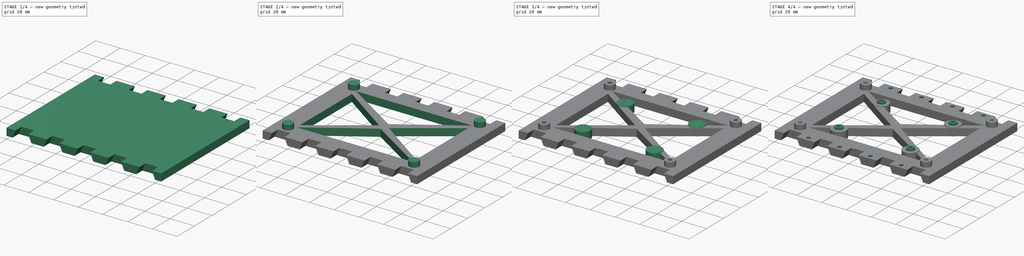
[diagram: build sequence overview — one tinted view per stage of 4, left to right]
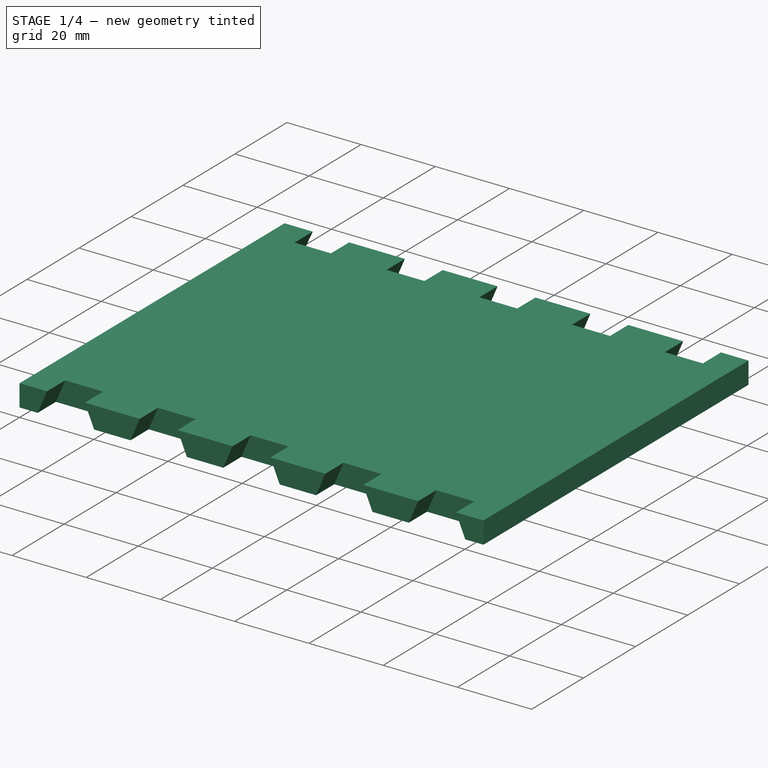
[diagram: stage 1 of 4 — iso view after this stage's code; geometry added in this stage tinted green]
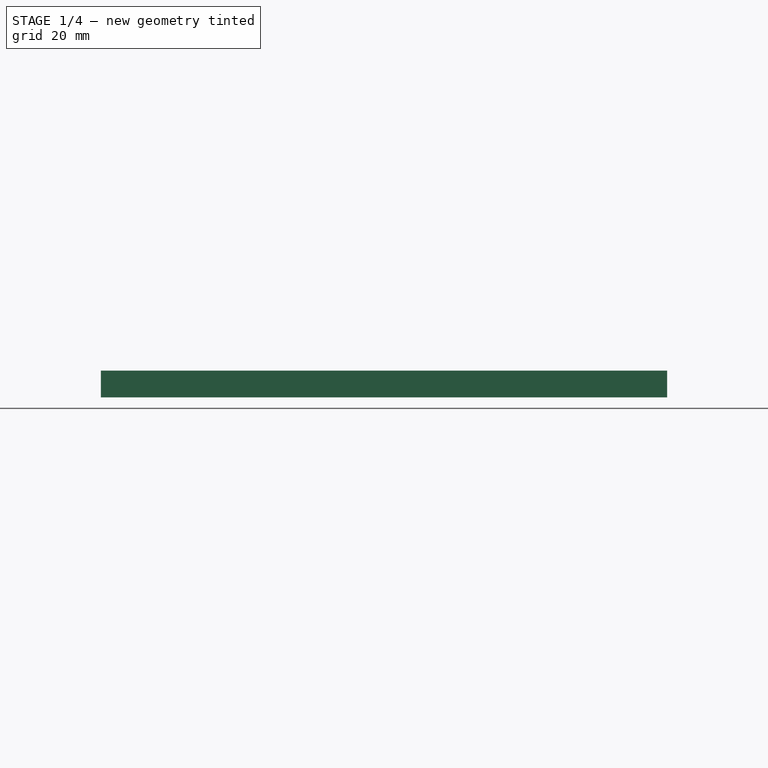
[diagram: stage 1 of 4 — front view after this stage's code; geometry added in this stage tinted green]
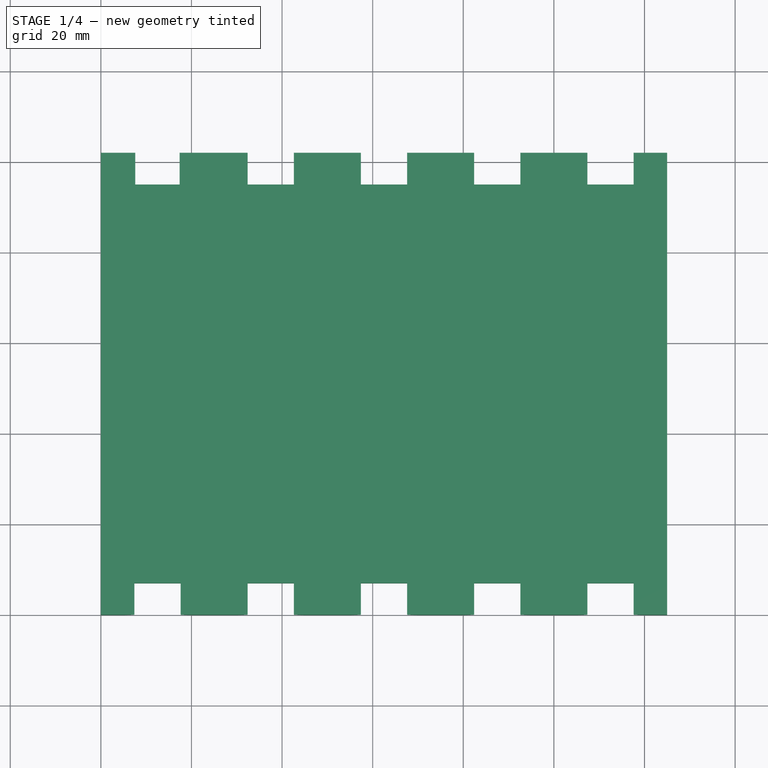
[diagram: stage 1 of 4 — top view after this stage's code; geometry added in this stage tinted green]
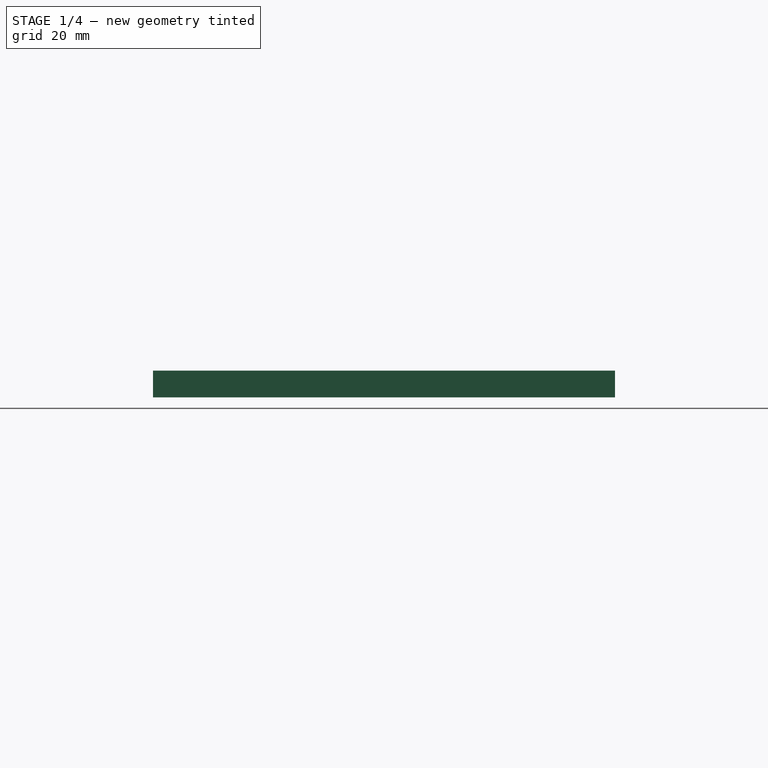
[diagram: stage 1 of 4 — right view after this stage's code; geometry added in this stage tinted green]
FCSTD DOCUMENT  (FreeCAD 0.17R13541 (Git))
Label: mks_gen_l_mount
License: All rights reserved
LicenseURL: http://en.wikipedia.org/wiki/All_rights_reserved
objects: Sketcher::SketchObject×11, PartDesign::Pocket×7, PartDesign::Pad×4, App::Part×1, PartDesign::Body×1
note: 34 computed .brp shape members not serialized (recipe doc carries the construction recipe); baked Part::Feature solids carry a one-line shape summary decoded from their .brp

FEATURE [App::Part] Part
  License = CC BY 3.0
  LicenseURL = http://creativecommons.org/licenses/by/3.0/
  Origin = -> Origin
FEATURE [Sketcher::SketchObject] Sketch
  MapMode = 5
  Support = -> [XY_Plane001]
  sketch-geometry (4):
    g0: LineSegment StartX=0 StartY=102 StartZ=0 EndX=125 EndY=102 EndZ=0
    g1: LineSegment StartX=125 StartY=102 StartZ=0 EndX=125 EndY=0 EndZ=0
    g2: LineSegment StartX=125 StartY=0 StartZ=0 EndX=0 EndY=0 EndZ=0
    g3: LineSegment StartX=0 StartY=0 StartZ=0 EndX=0 EndY=102 EndZ=0
  constraints (11):
    c: Coincident(g0,g1)
    c: Coincident(g1,g2)
    c: Coincident(g2,g3)
    c: Coincident(g3,g0)
    c: Horizontal(g0)
    c: Horizontal(g2)
    c: Vertical(g1)
    c: Vertical(g3)
    c: Coincident(g2,g-1)
    c: DistanceX(g2,g2) = 125
    c: DistanceY(g3,g3) = 102
FEATURE [PartDesign::Pad] Pad
  Length = 5.9
  Length2 = 100
  Profile = -> Sketch
  Type = 0
FEATURE [Sketcher::SketchObject] Sketch001
  MapMode = 5
  Placement = pos=(0,0,0) rot=(1,0,0;1.5708rad)
  Support = -> [Pad]
  sketch-geometry (20):
    g0: LineSegment StartX=7.4 StartY=5.9 StartZ=0 EndX=17.6 EndY=5.9 EndZ=0
    g1: LineSegment StartX=17.6 StartY=5.9 StartZ=0 EndX=20.1 EndY=0 EndZ=0
    g2: LineSegment StartX=4.9 StartY=0 StartZ=0 EndX=20.1 EndY=0 EndZ=0
    g3: LineSegment StartX=7.4 StartY=5.9 StartZ=0 EndX=4.9 EndY=0 EndZ=0
    g4: LineSegment StartX=32.4 StartY=5.9 StartZ=0 EndX=42.6 EndY=5.9 EndZ=0
    g5: LineSegment StartX=42.6 StartY=5.9 StartZ=0 EndX=45.1 EndY=0 EndZ=0
    g6: LineSegment StartX=29.9 StartY=0 StartZ=0 EndX=45.1 EndY=0 EndZ=0
    g7: LineSegment StartX=32.4 StartY=5.9 StartZ=0 EndX=29.9 EndY=0 EndZ=0
    g8: LineSegment StartX=57.4 StartY=5.9 StartZ=0 EndX=67.6 EndY=5.9 EndZ=0
    g9: LineSegment StartX=67.6 StartY=5.9 StartZ=0 EndX=70.1 EndY=0 EndZ=0
    g10: LineSegment StartX=54.9 StartY=0 StartZ=0 EndX=70.1 EndY=0 EndZ=0
    g11: LineSegment StartX=57.4 StartY=5.9 StartZ=0 EndX=54.9 EndY=0 EndZ=0
    g12: LineSegment StartX=82.4 StartY=5.9 StartZ=0 EndX=92.6 EndY=5.9 EndZ=0
    g13: LineSegment StartX=92.6 StartY=5.9 StartZ=0 EndX=95.1 EndY=0 EndZ=0
    g14: LineSegment StartX=79.9 StartY=0 StartZ=0 EndX=95.1 EndY=0 EndZ=0
    g15: LineSegment StartX=82.4 StartY=5.9 StartZ=0 EndX=79.9 EndY=0 EndZ=0
    g16: LineSegment StartX=107.4 StartY=5.9 StartZ=0 EndX=117.6 EndY=5.9 EndZ=0
    g17: LineSegment StartX=117.6 StartY=5.9 StartZ=0 EndX=120.1 EndY=0 EndZ=0
    g18: LineSegment StartX=104.9 StartY=0 StartZ=0 EndX=120.1 EndY=0 EndZ=0
    g19: LineSegment StartX=107.4 StartY=5.9 StartZ=0 EndX=104.9 EndY=0 EndZ=0
  constraints (60):
    c: Horizontal(g0)
    c: Coincident(g0,g3)
    c: Coincident(g2,g3)
    c: Horizontal(g2)
    c: Coincident(g2,g1)
    c: Coincident(g0,g1)
    c: DistanceX(g0,g0) = 10.2
    c: DistanceX(g2,g2) = 15.2
    c: Equal(g3,g1)
    c: DistanceY(g2,g0) = 5.9
    c: Horizontal(g4)
    c: Coincident(g4,g7)
    c: Coincident(g6,g7)
    c: Horizontal(g6)
    c: Coincident(g6,g5)
    c: Coincident(g4,g5)
    c: Equal(g0,g4) = 10.2
    c: Equal(g2,g6) = 15.2
    c: Equal(g7,g5)
    c: DistanceY(g6,g4) = 5.9
    c: DistanceX(g1,g6) = 9.8
    c: PointOnObject(g-1,g2)
    c: PointOnObject(g-1,g6)
    c: Horizontal(g8)
    c: Coincident(g8,g11)
    c: Coincident(g10,g11)
    c: Horizontal(g10)
    c: Coincident(g10,g9)
    c: Coincident(g8,g9)
    c: Equal(g0,g8) = 10.2
    c: Equal(g2,g10) = 15.2
    c: Equal(g11,g9)
    c: DistanceY(g10,g8) = 5.9
    c: Horizontal(g12)
    c: Coincident(g12,g15)
    c: Coincident(g14,g15)
    c: Horizontal(g14)
    c: Coincident(g14,g13)
    c: Coincident(g12,g13)
    c: Equal(g8,g12) = 10.2
    c: Equal(g10,g14) = 15.2
    c: Equal(g15,g13)
    c: DistanceY(g14,g12) = 5.9
    c: DistanceX(g9,g14) = 9.8
    c: DistanceX(g5,g10) = 9.8
    c: PointOnObject(g-1,g10)
    c: PointOnObject(g-1,g14)
    c: Horizontal(g16)
    c: Coincident(g16,g19)
    c: Coincident(g18,g19)
    c: Horizontal(g18)
    c: Coincident(g18,g17)
    c: Coincident(g16,g17)
    c: Equal(g19,g17)
    c: DistanceY(g18,g16) = 5.9
    c: DistanceX(g13,g18) = 9.8
    c: PointOnObject(g-1,g18)
    c: DistanceX(g18,g17) = 15.2
    c: DistanceX(g16,g16) = 10.2
    c: DistanceX(g-1,g2) = 4.9
FEATURE [PartDesign::Pocket] Pocket
  BaseFeature = -> Pad
  Length = 7
  Length2 = 100
  Profile = -> Sketch001
  Type = 0
FEATURE [Sketcher::SketchObject] Sketch003
  MapMode = 5
  Placement = pos=(0,102,0) rot=(0,0.707107,0.707107;3.14159rad)
  Support = -> [Pocket]
  sketch-geometry (20):
    g0: LineSegment StartX=-117.6 StartY=5.9 StartZ=0 EndX=-107.4 EndY=5.9 EndZ=0
    g1: LineSegment StartX=-107.4 StartY=5.9 StartZ=0 EndX=-104.9 EndY=0 EndZ=0
    g2: LineSegment StartX=-120.1 StartY=0 StartZ=0 EndX=-104.9 EndY=0 EndZ=0
    g3: LineSegment StartX=-117.6 StartY=5.9 StartZ=0 EndX=-120.1 EndY=0 EndZ=0
    g4: LineSegment StartX=-92.6 StartY=5.9 StartZ=0 EndX=-82.4 EndY=5.9 EndZ=0
    g5: LineSegment StartX=-82.4 StartY=5.9 StartZ=0 EndX=-79.9 EndY=0 EndZ=0
    g6: LineSegment StartX=-95.1 StartY=0 StartZ=0 EndX=-79.9 EndY=0 EndZ=0
    g7: LineSegment StartX=-92.6 StartY=5.9 StartZ=0 EndX=-95.1 EndY=0 EndZ=0
    g8: LineSegment StartX=-67.6 StartY=5.9 StartZ=0 EndX=-57.4 EndY=5.9 EndZ=0
    g9: LineSegment StartX=-57.4 StartY=5.9 StartZ=0 EndX=-54.9 EndY=0 EndZ=0
    g10: LineSegment StartX=-70.1 StartY=0 StartZ=0 EndX=-54.9 EndY=0 EndZ=0
    g11: LineSegment StartX=-67.6 StartY=5.9 StartZ=0 EndX=-70.1 EndY=0 EndZ=0
    g12: LineSegment StartX=-42.6 StartY=5.9 StartZ=0 EndX=-32.4 EndY=5.9 EndZ=0
    g13: LineSegment StartX=-32.4 StartY=5.9 StartZ=0 EndX=-29.9 EndY=0 EndZ=0
    g14: LineSegment StartX=-45.1 StartY=0 StartZ=0 EndX=-29.9 EndY=0 EndZ=0
    g15: LineSegment StartX=-42.6 StartY=5.9 StartZ=0 EndX=-45.1 EndY=0 EndZ=0
    g16: LineSegment StartX=-17.4 StartY=5.9 StartZ=0 EndX=-7.6 EndY=5.9 EndZ=0
    g17: LineSegment StartX=-7.6 StartY=5.9 StartZ=0 EndX=-4.9 EndY=0 EndZ=0
    g18: LineSegment StartX=-20.1 StartY=0 StartZ=0 EndX=-4.9 EndY=0 EndZ=0
    g19: LineSegment StartX=-17.4 StartY=5.9 StartZ=0 EndX=-20.1 EndY=0 EndZ=0
  constraints (60):
    c: Horizontal(g0)
    c: Horizontal(g2)
    c: Coincident(g0,g3)
    c: Coincident(g0,g1)
    c: Coincident(g1,g2)
    c: Coincident(g2,g3)
    c: DistanceX(g2,g2) = 15.2
    c: DistanceX(g0,g0) = 10.2
    c: Equal(g3,g1)
    c: PointOnObject(g-1,g2)
    c: DistanceY(g2,g0) = 5.9
    c: Horizontal(g4)
    c: Horizontal(g6)
    c: Coincident(g4,g7)
    c: Coincident(g4,g5)
    c: Coincident(g5,g6)
    c: Coincident(g6,g7)
    c: Equal(g2,g6) = 15.2
    c: Equal(g0,g4) = 10.2
    c: Equal(g7,g5)
    c: DistanceY(g6,g4) = 5.9
    c: DistanceX(g1,g6) = 9.8
    c: PointOnObject(g-1,g6)
    c: Horizontal(g8)
    c: Horizontal(g10)
    c: Coincident(g8,g11)
    c: Coincident(g8,g9)
    c: Coincident(g9,g10)
    c: Coincident(g10,g11)
    c: Equal(g2,g10) = 15.2
    c: Equal(g0,g8) = 10.2
    c: Equal(g11,g9)
    c: DistanceY(g10,g8) = 5.9
    c: Horizontal(g12)
    c: Horizontal(g14)
    c: Coincident(g12,g15)
    c: Coincident(g12,g13)
    c: Coincident(g13,g14)
    c: Coincident(g14,g15)
    c: Equal(g10,g14) = 15.2
    c: Equal(g8,g12) = 10.2
    c: Equal(g15,g13)
    c: DistanceY(g14,g12) = 5.9
    c: DistanceX(g9,g14) = 9.8
    c: DistanceX(g5,g10) = 9.8
    c: PointOnObject(g-1,g14)
    c: PointOnObject(g-1,g10)
    c: Horizontal(g16)
    c: Horizontal(g18)
    c: Coincident(g16,g19)
    c: Coincident(g16,g17)
    c: Coincident(g17,g18)
    c: Coincident(g18,g19)
    c: Equal(g19,g17)
    c: DistanceY(g18,g16) = 5.9
    c: PointOnObject(g-1,g18)
    c: DistanceX(g13,g18) = 9.8
    c: DistanceX(g18,g18) = 15.2
    c: DistanceX(g16,g16) = 9.8
    c: DistanceX(g17,g-1) = 4.9
FEATURE [PartDesign::Pocket] Pocket001
  BaseFeature = -> Pocket
  Length = 7
  Length2 = 100
  Profile = -> Sketch003
  Type = 0
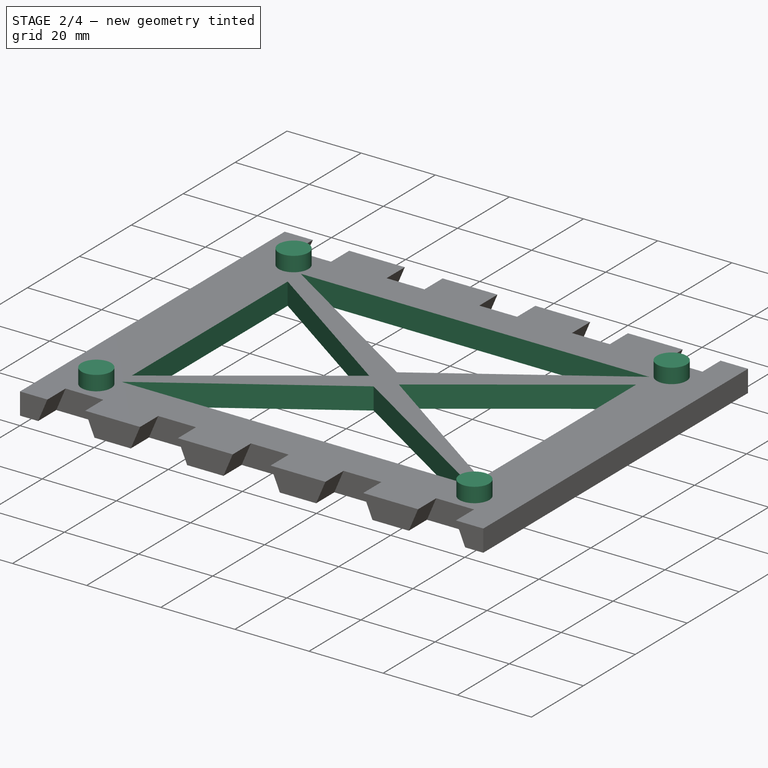
[diagram: stage 2 of 4 — iso view after this stage's code; geometry added in this stage tinted green]
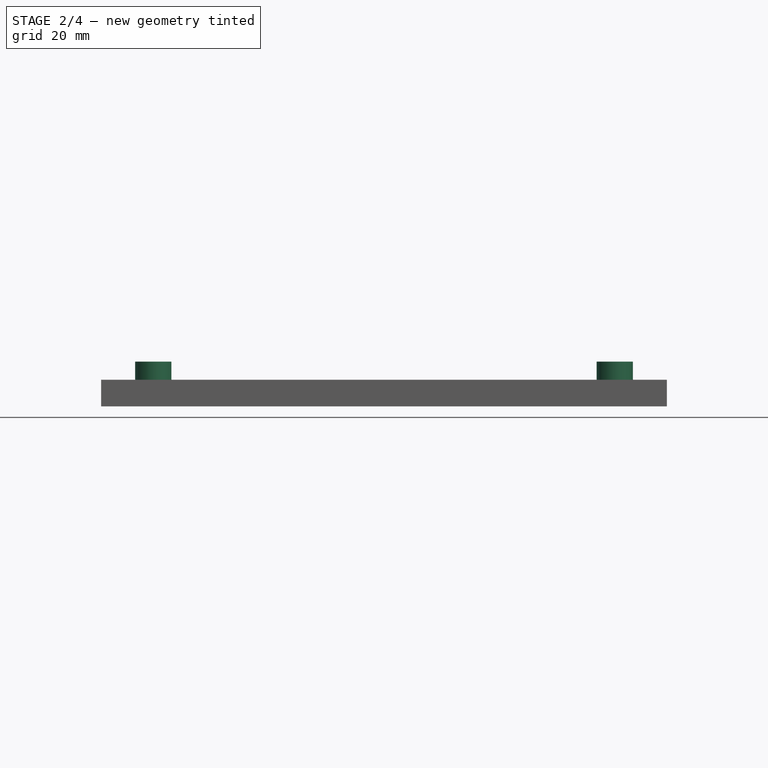
[diagram: stage 2 of 4 — front view after this stage's code; geometry added in this stage tinted green]
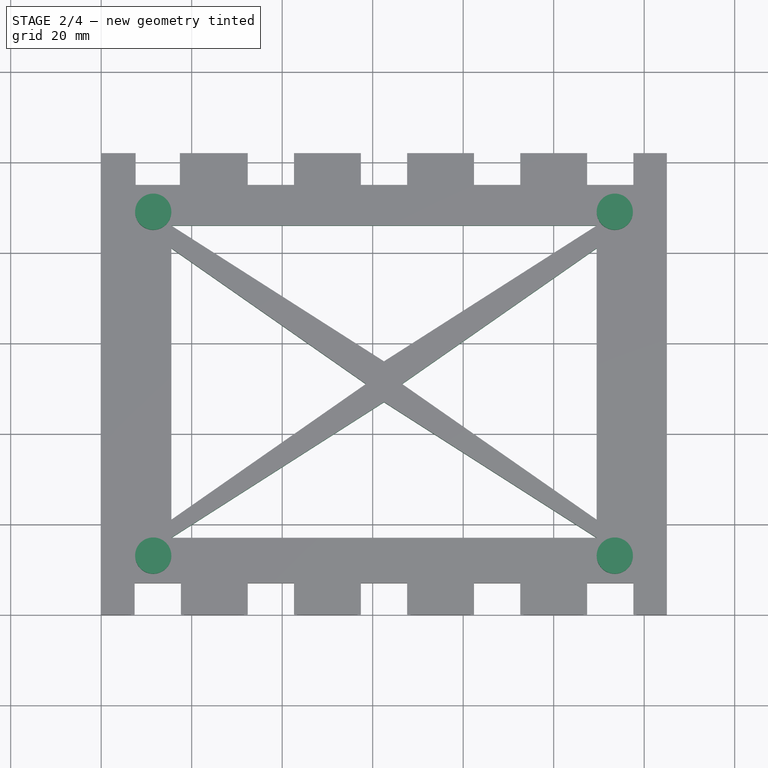
[diagram: stage 2 of 4 — top view after this stage's code; geometry added in this stage tinted green]
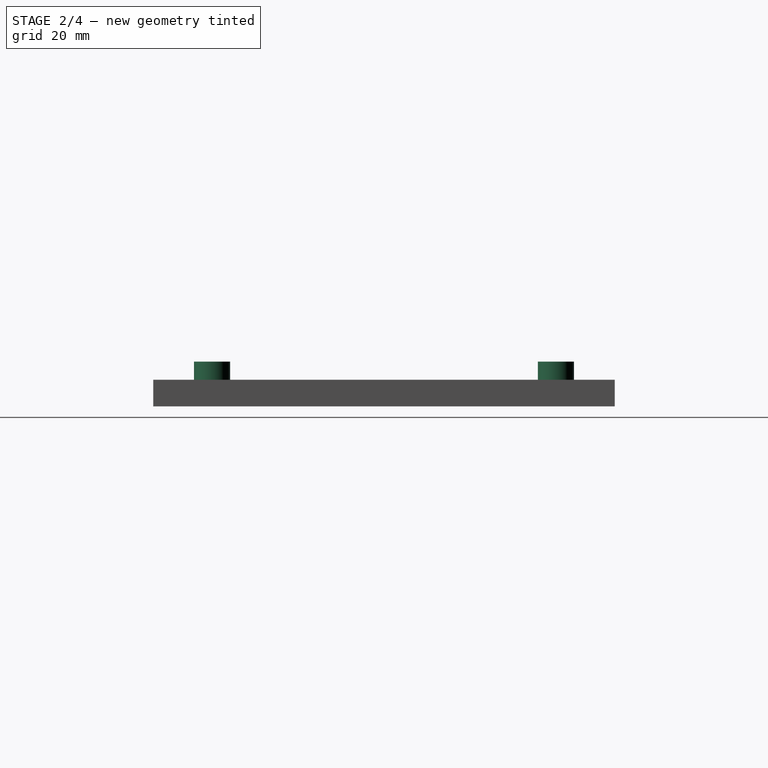
[diagram: stage 2 of 4 — right view after this stage's code; geometry added in this stage tinted green]
FEATURE [Sketcher::SketchObject] Sketch006
  MapMode = 5
  Placement = pos=(0,0,0) rot=(1,0,0;3.14159rad)
  sketch-geometry (6):
    g0: LineSegment StartX=15.5 StartY=-17 StartZ=0 EndX=109.5 EndY=-17 EndZ=0
    g1: LineSegment StartX=109.5 StartY=-17 StartZ=0 EndX=62.5 EndY=-47 EndZ=0
    g2: LineSegment StartX=62.5 StartY=-47 StartZ=0 EndX=15.5 EndY=-17 EndZ=0
    g3: LineSegment StartX=15.5 StartY=-86 StartZ=0 EndX=109.5 EndY=-86 EndZ=0
    g4: LineSegment StartX=109.5 StartY=-86 StartZ=0 EndX=62.5 EndY=-56 EndZ=0
    g5: LineSegment StartX=62.5 StartY=-56 StartZ=0 EndX=15.5 EndY=-86 EndZ=0
  constraints (18):
    c: Coincident(g0,g1)
    c: Coincident(g1,g2)
    c: Coincident(g2,g0)
    c: Equal(g2,g1)
    c: Horizontal(g0)
    c: DistanceX(g0,g0) = 94
    c: DistanceX(g-1,g0) = 15.5
    c: DistanceY(g0,g-1) = 17
    c: DistanceY(g1,g-1) = 47
    c: Coincident(g3,g4)
    c: Coincident(g4,g5)
    c: Coincident(g5,g3)
    c: Equal(g5,g4)
    c: Horizontal(g3)
    c: Equal(g0,g3) = 94
    c: DistanceY(g3,g-1) = 86
    c: DistanceX(g-1,g3) = 15.5
    c: DistanceY(g4,g-1) = 56
FEATURE [PartDesign::Pocket] Pocket003
  BaseFeature = -> Pocket001
  Length = 6
  Length2 = 100
  Profile = -> Sketch006
  Type = 0
FEATURE [Sketcher::SketchObject] Sketch007
  MapMode = 5
  Placement = pos=(0,0,5.9) rot=(0,0,1;0rad)
  Support = -> [Pocket003]
  sketch-geometry (6):
    g0: LineSegment StartX=15.5 StartY=81 StartZ=0 EndX=15.5 EndY=21 EndZ=0
    g1: LineSegment StartX=15.5 StartY=21 StartZ=0 EndX=58.5 EndY=51 EndZ=0
    g2: LineSegment StartX=15.5 StartY=81 StartZ=0 EndX=58.5 EndY=51 EndZ=0
    g3: LineSegment StartX=109.5 StartY=81 StartZ=0 EndX=109.5 EndY=21 EndZ=0
    g4: LineSegment StartX=66.5 StartY=51 StartZ=0 EndX=109.5 EndY=81 EndZ=0
    g5: LineSegment StartX=66.5 StartY=51 StartZ=0 EndX=109.5 EndY=21 EndZ=0
  constraints (18):
    c: Vertical(g0)
    c: Vertical(g3)
    c: Coincident(g0,g2)
    c: Coincident(g0,g1)
    c: Coincident(g1,g2)
    c: Coincident(g3,g4)
    c: Coincident(g4,g5)
    c: Coincident(g3,g5)
    c: Equal(g4,g5)
    c: Equal(g2,g1)
    c: DistanceY(g3,g3) = 60
    c: DistanceY(g0,g0) = 60
    c: DistanceX(g-1,g4) = 66.5
    c: DistanceX(g-1,g1) = 58.5
    c: DistanceX(g-1,g0) = 15.5
    c: DistanceY(g-1,g0) = 21
    c: DistanceX(g-1,g3) = 109.5
    c: DistanceY(g-1,g3) = 21
FEATURE [PartDesign::Pocket] Pocket004
  BaseFeature = -> Pocket003
  Length = 6
  Length2 = 100
  Profile = -> Sketch007
  Type = 0
FEATURE [Sketcher::SketchObject] Sketch008
  MapMode = 5
  Placement = pos=(0,0,5.9) rot=(0,0,1;0rad)
  Support = -> [Pocket004]
  sketch-geometry (4):
    g0: Circle CenterX=11.5 CenterY=89 CenterZ=0 NormalX=0 NormalY=0 NormalZ=1 AngleXU=0 Radius=4
    g1: Circle CenterX=113.5 CenterY=89 CenterZ=0 NormalX=0 NormalY=0 NormalZ=1 AngleXU=0 Radius=4
    g2: Circle CenterX=11.5 CenterY=13 CenterZ=0 NormalX=0 NormalY=0 NormalZ=1 AngleXU=0 Radius=4
    g3: Circle CenterX=113.5 CenterY=13 CenterZ=0 NormalX=0 NormalY=0 NormalZ=1 AngleXU=0 Radius=4
  constraints (12):
    c: Radius(g0) = 4
    c: Equal(g0,g1)
    c: Equal(g0,g3)
    c: Equal(g0,g2)
    c: Horizontal(g2,g3)
    c: Vertical(g0,g2)
    c: Horizontal(g0,g1)
    c: Vertical(g1,g3)
    c: DistanceY(g2,g0) = 76
    c: DistanceX(g0,g1) = 102
    c: DistanceX(g-1,g2) = 11.5
    c: DistanceY(g-1,g2) = 13
FEATURE [PartDesign::Pad] Pad002
  BaseFeature = -> Pocket004
  Length = 4
  Length2 = 100
  Profile = -> Sketch008
  Type = 0
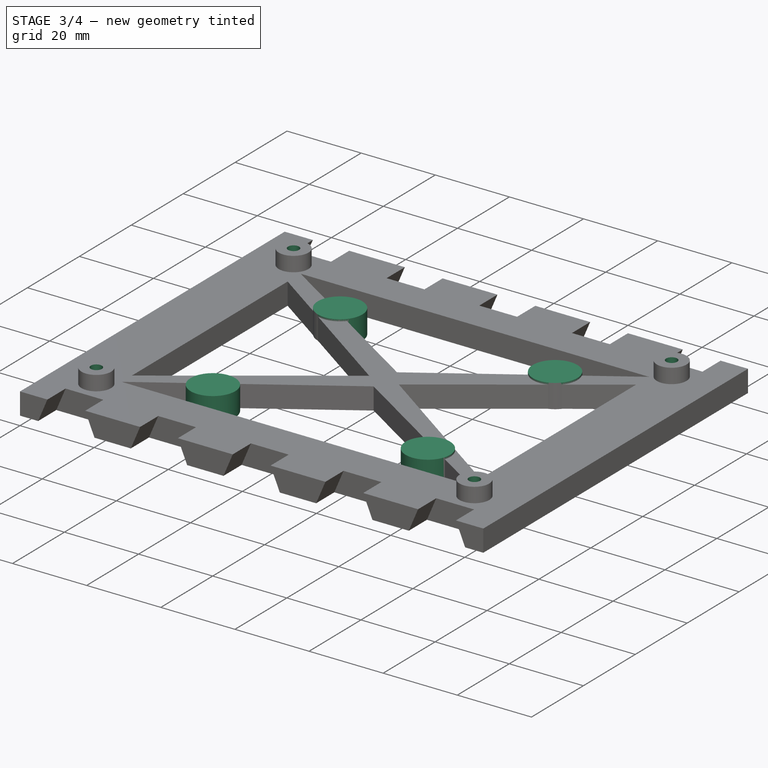
[diagram: stage 3 of 4 — iso view after this stage's code; geometry added in this stage tinted green]
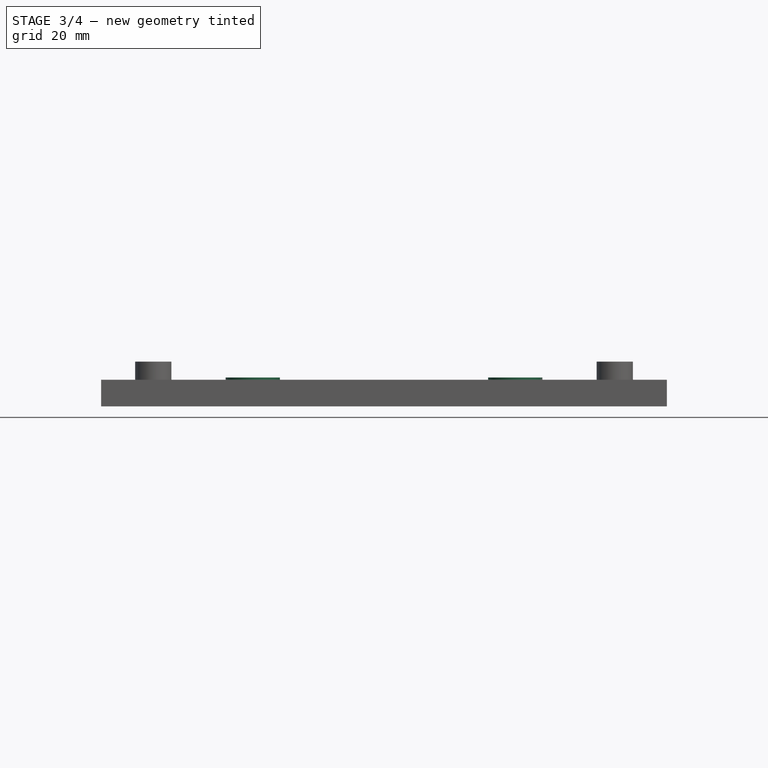
[diagram: stage 3 of 4 — front view after this stage's code; geometry added in this stage tinted green]
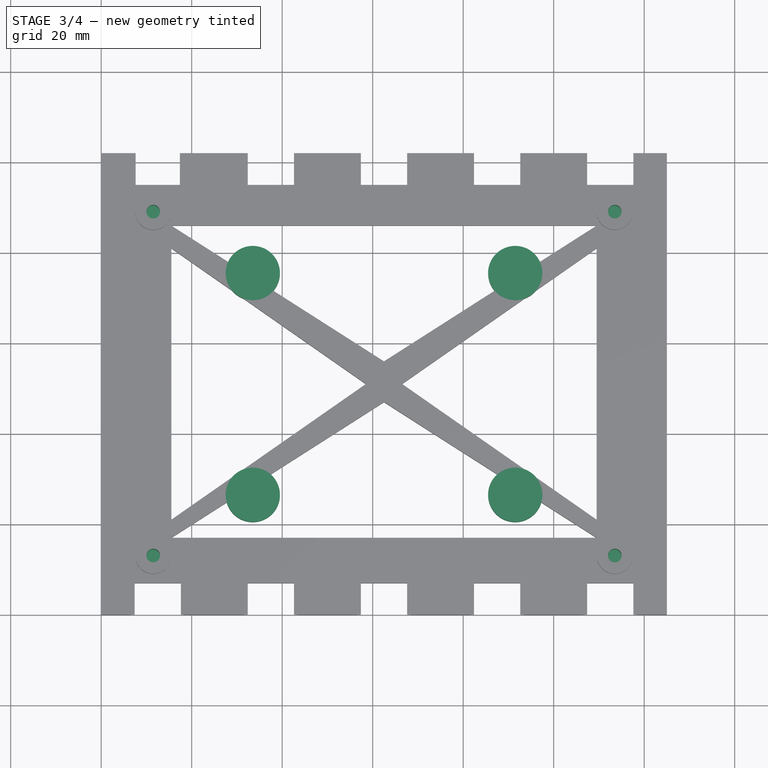
[diagram: stage 3 of 4 — top view after this stage's code; geometry added in this stage tinted green]
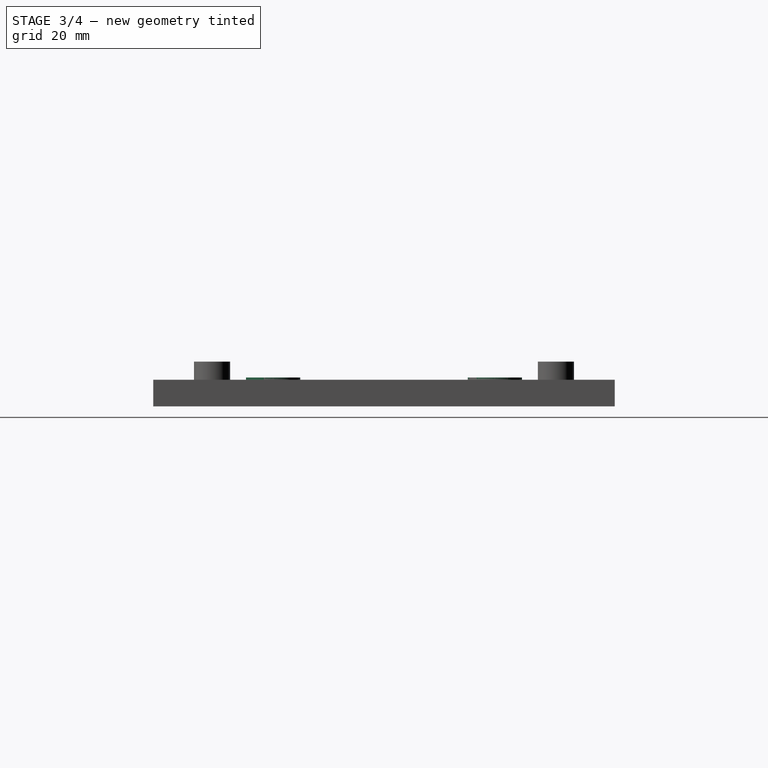
[diagram: stage 3 of 4 — right view after this stage's code; geometry added in this stage tinted green]
FEATURE [Sketcher::SketchObject] Sketch009
  MapMode = 5
  Placement = pos=(0,0,9.9) rot=(0,0,1;0rad)
  Support = -> [Pad002]
  sketch-geometry (4):
    g0: Circle CenterX=11.5 CenterY=13 CenterZ=0 NormalX=0 NormalY=0 NormalZ=1 AngleXU=0 Radius=1.5
    g1: Circle CenterX=11.5 CenterY=89 CenterZ=0 NormalX=0 NormalY=0 NormalZ=1 AngleXU=0 Radius=1.5
    g2: Circle CenterX=113.5 CenterY=89 CenterZ=0 NormalX=0 NormalY=0 NormalZ=1 AngleXU=0 Radius=1.5
    g3: Circle CenterX=113.5 CenterY=13 CenterZ=0 NormalX=0 NormalY=0 NormalZ=1 AngleXU=0 Radius=1.5
  constraints (12):
    c: Radius(g1) = 1.5
    c: Equal(g1,g2)
    c: Equal(g1,g3)
    c: Equal(g1,g0)
    c: Vertical(g1,g0)
    c: Horizontal(g0,g3)
    c: Vertical(g3,g2)
    c: Horizontal(g1,g2)
    c: DistanceX(g1,g2) = 102
    c: DistanceY(g0,g1) = 76
    c: DistanceX(g-1,g0) = 11.5
    c: DistanceY(g-1,g0) = 13
FEATURE [PartDesign::Pocket] Pocket005
  BaseFeature = -> Pad002
  Length = 9
  Length2 = 100
  Profile = -> Sketch009
  Type = 0
FEATURE [Sketcher::SketchObject] Sketch010
  MapMode = 5
  Placement = pos=(0,0,5.9) rot=(0,0,1;0rad)
  Support = -> [Pocket005]
  sketch-geometry (4):
    g0: Circle CenterX=33.5 CenterY=75.5 CenterZ=0 NormalX=0 NormalY=0 NormalZ=1 AngleXU=0 Radius=6
    g1: Circle CenterX=91.5 CenterY=75.5 CenterZ=0 NormalX=0 NormalY=0 NormalZ=1 AngleXU=0 Radius=6
    g2: Circle CenterX=33.5 CenterY=26.5 CenterZ=0 NormalX=0 NormalY=0 NormalZ=1 AngleXU=0 Radius=6
    g3: Circle CenterX=91.5 CenterY=26.5 CenterZ=0 NormalX=0 NormalY=0 NormalZ=1 AngleXU=0 Radius=6
  constraints (12):
    c: Radius(g0) = 6
    c: Equal(g0,g1)
    c: Equal(g0,g3)
    c: Equal(g0,g2)
    c: Horizontal(g0,g1)
    c: Vertical(g0,g2)
    c: Vertical(g1,g3)
    c: Horizontal(g2,g3)
    c: DistanceX(g0,g1) = 58
    c: DistanceY(g2,g0) = 49
    c: DistanceY(g-1,g2) = 26.5
    c: DistanceX(g-1,g2) = 33.5
FEATURE [PartDesign::Pad] Pad003
  BaseFeature = -> Pocket005
  Length = 0.5
  Length2 = 5.9
  Offset = 14
  Profile = -> Sketch010
  Type = 4
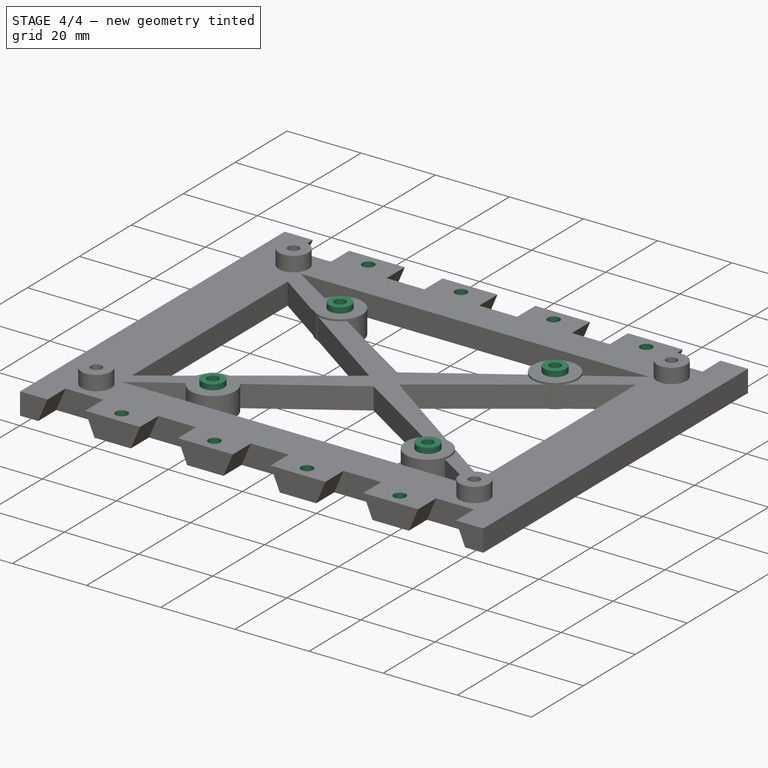
[diagram: stage 4 of 4 — iso view after this stage's code; geometry added in this stage tinted green]
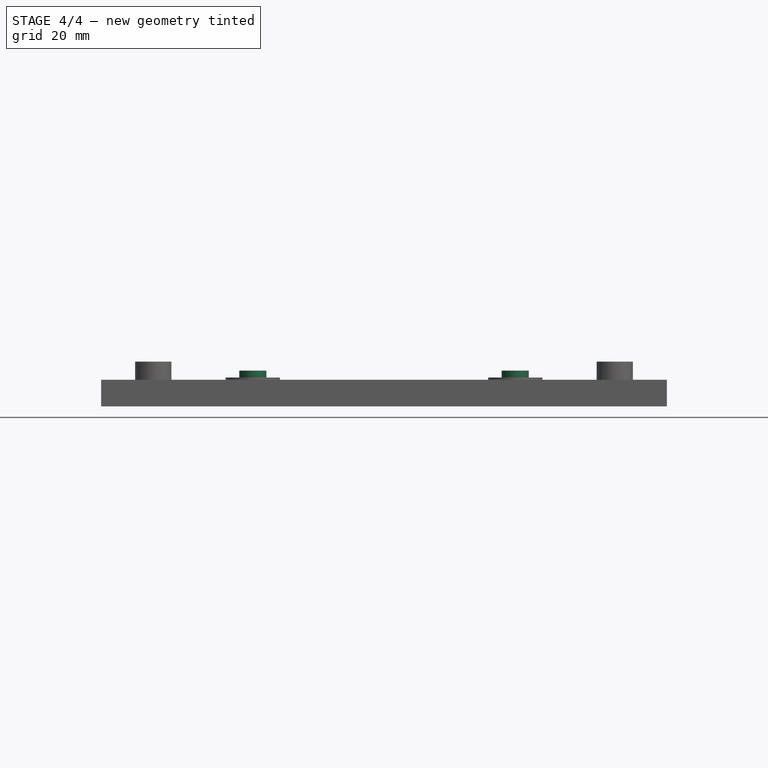
[diagram: stage 4 of 4 — front view after this stage's code; geometry added in this stage tinted green]
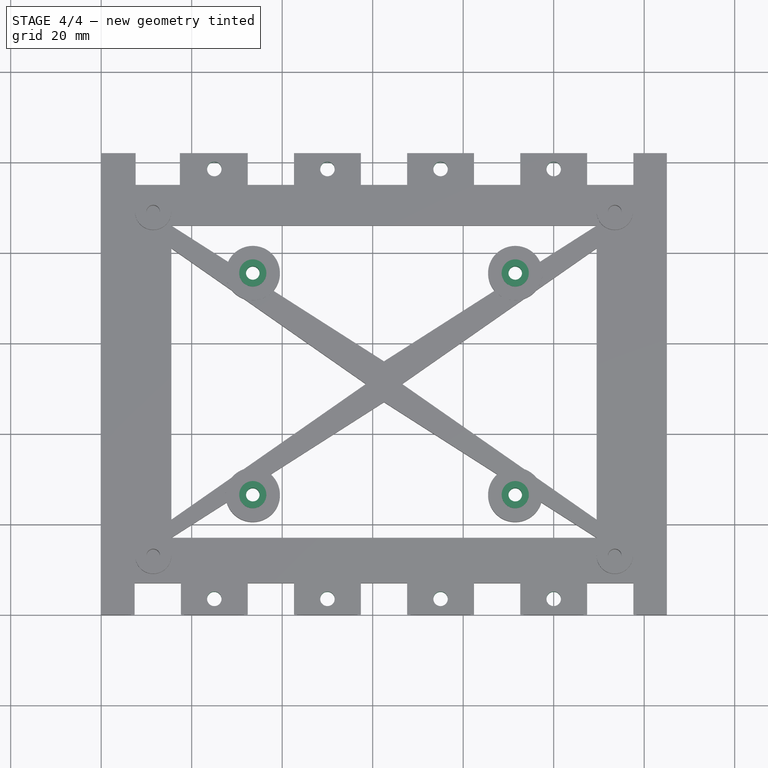
[diagram: stage 4 of 4 — top view after this stage's code; geometry added in this stage tinted green]
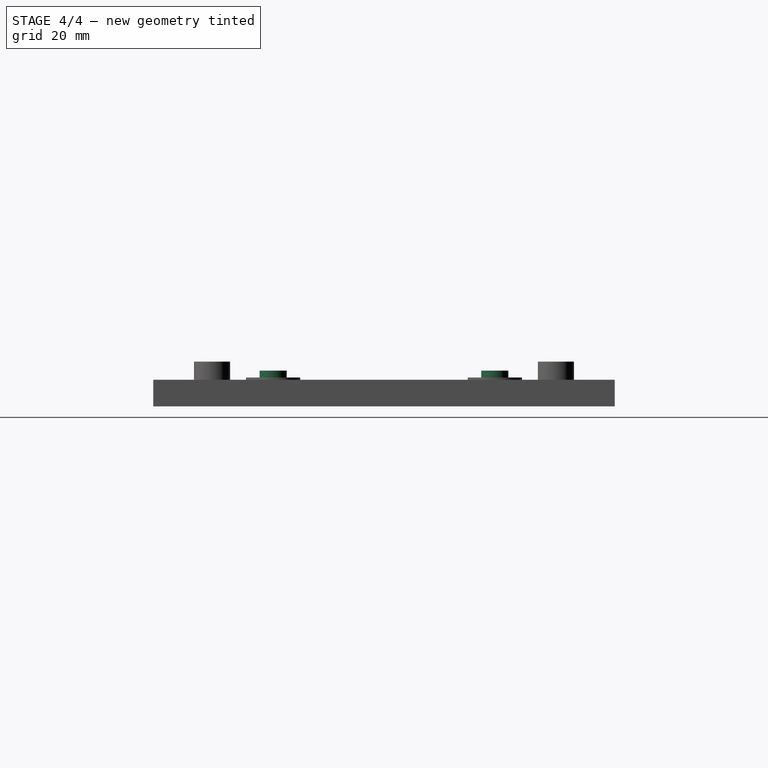
[diagram: stage 4 of 4 — right view after this stage's code; geometry added in this stage tinted green]
FEATURE [Sketcher::SketchObject] Sketch011
  MapMode = 5
  Placement = pos=(0,0,5.9) rot=(0,0,1;0rad)
  Support = -> [Pad003]
  sketch-geometry (4):
    g0: Circle CenterX=33.5 CenterY=75.5 CenterZ=0 NormalX=0 NormalY=0 NormalZ=1 AngleXU=0 Radius=3
    g1: Circle CenterX=91.5 CenterY=75.5 CenterZ=0 NormalX=0 NormalY=0 NormalZ=1 AngleXU=0 Radius=3
    g2: Circle CenterX=33.5 CenterY=26.5 CenterZ=0 NormalX=0 NormalY=0 NormalZ=1 AngleXU=0 Radius=3
    g3: Circle CenterX=91.5 CenterY=26.5 CenterZ=0 NormalX=0 NormalY=0 NormalZ=1 AngleXU=0 Radius=3
  constraints (12):
    c: Radius(g0) = 3
    c: Equal(g0,g1)
    c: Equal(g0,g3)
    c: Equal(g0,g2)
    c: Horizontal(g0,g1)
    c: Vertical(g0,g2)
    c: Horizontal(g2,g3)
    c: Vertical(g1,g3)
    c: DistanceX(g0,g1) = 58
    c: DistanceY(g2,g0) = 49
    c: DistanceX(g-1,g2) = 33.5
    c: DistanceY(g-1,g2) = 26.5
FEATURE [PartDesign::Pad] Pad004
  BaseFeature = -> Pad003
  Length = 2
  Length2 = 100
  Profile = -> Sketch011
  Type = 0
FEATURE [Sketcher::SketchObject] Sketch012
  MapMode = 5
  Placement = pos=(0,0,7.9) rot=(0,0,1;0rad)
  Support = -> [Pad004]
  sketch-geometry (4):
    g0: Circle CenterX=91.5 CenterY=75.5 CenterZ=0 NormalX=0 NormalY=0 NormalZ=1 AngleXU=0 Radius=1.5
    g1: Circle CenterX=91.5 CenterY=26.5 CenterZ=0 NormalX=0 NormalY=0 NormalZ=1 AngleXU=0 Radius=1.5
    g2: Circle CenterX=33.5 CenterY=26.5 CenterZ=0 NormalX=0 NormalY=0 NormalZ=1 AngleXU=0 Radius=1.5
    g3: Circle CenterX=33.5 CenterY=75.5 CenterZ=0 NormalX=0 NormalY=0 NormalZ=1 AngleXU=0 Radius=1.5
  constraints (12):
    c: Radius(g3) = 1.5
    c: Equal(g3,g0)
    c: Equal(g3,g1)
    c: Equal(g3,g2)
    c: Horizontal(g3,g0)
    c: Vertical(g3,g2)
    c: Vertical(g0,g1)
    c: Horizontal(g2,g1)
    c: DistanceX(g3,g0) = 58
    c: DistanceY(g2,g3) = 49
    c: DistanceX(g-1,g2) = 33.5
    c: DistanceY(g-1,g2) = 26.5
FEATURE [PartDesign::Pocket] Pocket006
  BaseFeature = -> Pad004
  Length = 8
  Length2 = 100
  Profile = -> Sketch012
  Type = 0
FEATURE [Sketcher::SketchObject] Sketch013
  MapMode = 5
  Placement = pos=(0,0,5.9) rot=(0,0,1;0rad)
  Support = -> [Pocket006]
  sketch-geometry (8):
    g0: Circle CenterX=25 CenterY=3.5 CenterZ=0 NormalX=0 NormalY=0 NormalZ=1 AngleXU=0 Radius=1.6
    g1: Circle CenterX=50 CenterY=3.5 CenterZ=0 NormalX=0 NormalY=0 NormalZ=1 AngleXU=0 Radius=1.6
    g2: Circle CenterX=75 CenterY=3.5 CenterZ=0 NormalX=0 NormalY=0 NormalZ=1 AngleXU=0 Radius=1.6
    g3: Circle CenterX=100 CenterY=3.5 CenterZ=0 NormalX=0 NormalY=0 NormalZ=1 AngleXU=0 Radius=1.6
    g4: Circle CenterX=25 CenterY=98.5 CenterZ=0 NormalX=0 NormalY=0 NormalZ=1 AngleXU=0 Radius=1.6
    g5: Circle CenterX=50 CenterY=98.5 CenterZ=0 NormalX=0 NormalY=0 NormalZ=1 AngleXU=0 Radius=1.6
    g6: Circle CenterX=75 CenterY=98.5 CenterZ=0 NormalX=0 NormalY=0 NormalZ=1 AngleXU=0 Radius=1.6
    g7: Circle CenterX=100 CenterY=98.5 CenterZ=0 NormalX=0 NormalY=0 NormalZ=1 AngleXU=0 Radius=1.6
  constraints (24):
    c: Horizontal(g0,g1)
    c: Horizontal(g1,g2)
    c: Horizontal(g2,g3)
    c: Equal(g0,g1)
    c: Equal(g1,g2)
    c: Equal(g2,g3)
    c: Radius(g0) = 1.6
    c: DistanceX(g0,g1) = 25
    c: DistanceX(g1,g2) = 25
    c: DistanceX(g2,g3) = 25
    c: DistanceY(g-1,g0) = 3.5
    c: DistanceX(g-1,g0) = 25
    c: Horizontal(g4,g5)
    c: Horizontal(g5,g6)
    c: Horizontal(g6,g7)
    c: Equal(g4,g5)
    c: Equal(g5,g6)
    c: Equal(g6,g7)
    c: Radius(g4) = 1.6
    c: DistanceX(g4,g5) = 25
    c: DistanceX(g5,g6) = 25
    c: DistanceX(g6,g7) = 25
    c: DistanceX(g-1,g4) = 25
    c: DistanceY(g-1,g4) = 98.5
FEATURE [PartDesign::Pocket] Pocket007
  BaseFeature = -> Pocket006
  Length = 5
  Length2 = 100
  Profile = -> Sketch013
  Type = 1
FEATURE [PartDesign::Body] Body
  Group = -> [Sketch,Pad,Sketch001,Pocket,Sketch003,Pocket001,Sketch006,Pocket003,Sketch007,Pocket004,Sketch008,Pad002,Sketch009,Pocket005,Sketch010,Pad003,Sketch011,Pad004,Sketch012,Pocket006,Sketch013,Pocket007]
  Origin = -> Origin001
  Tip = -> Pocket007
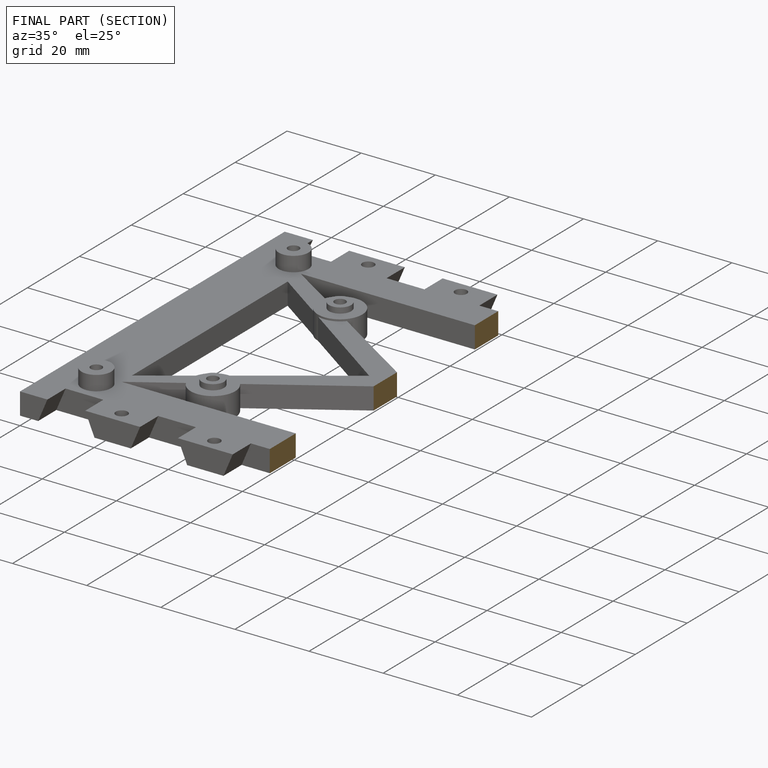
[diagram: finished part — half-section view (interior)]
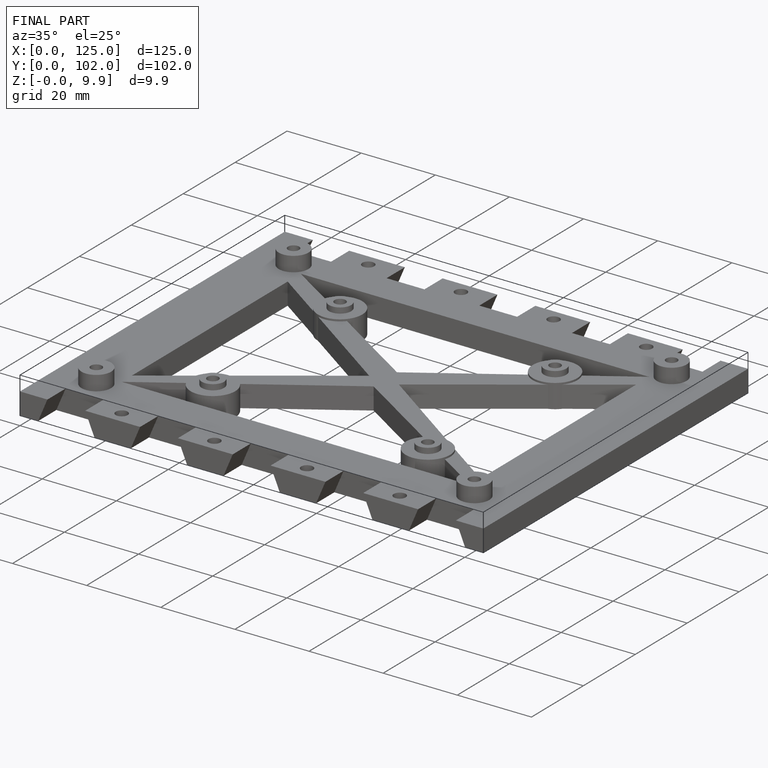
[diagram: finished part — iso view with bounding-box wireframe]
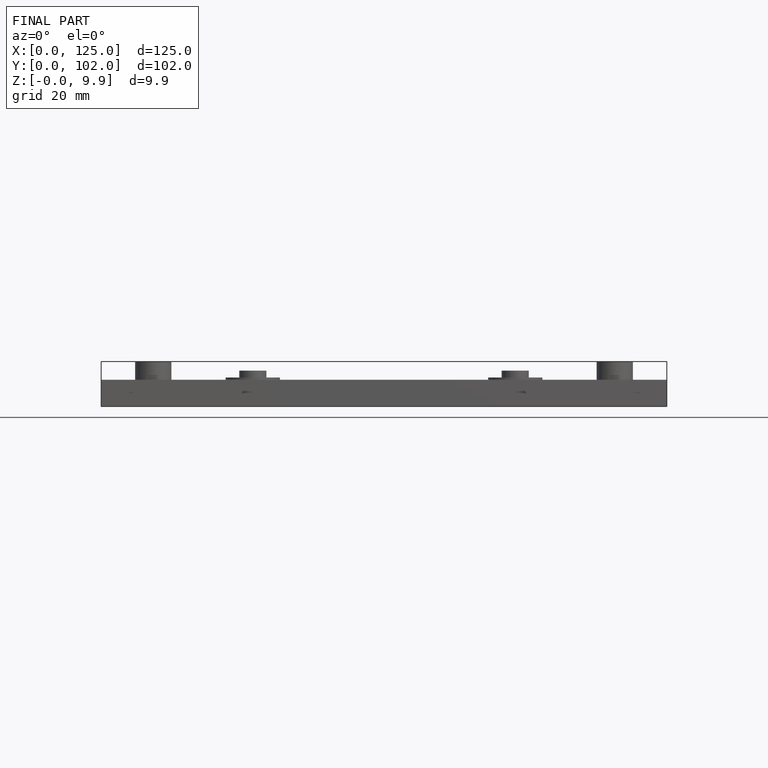
[diagram: finished part — front view with bounding-box wireframe]
